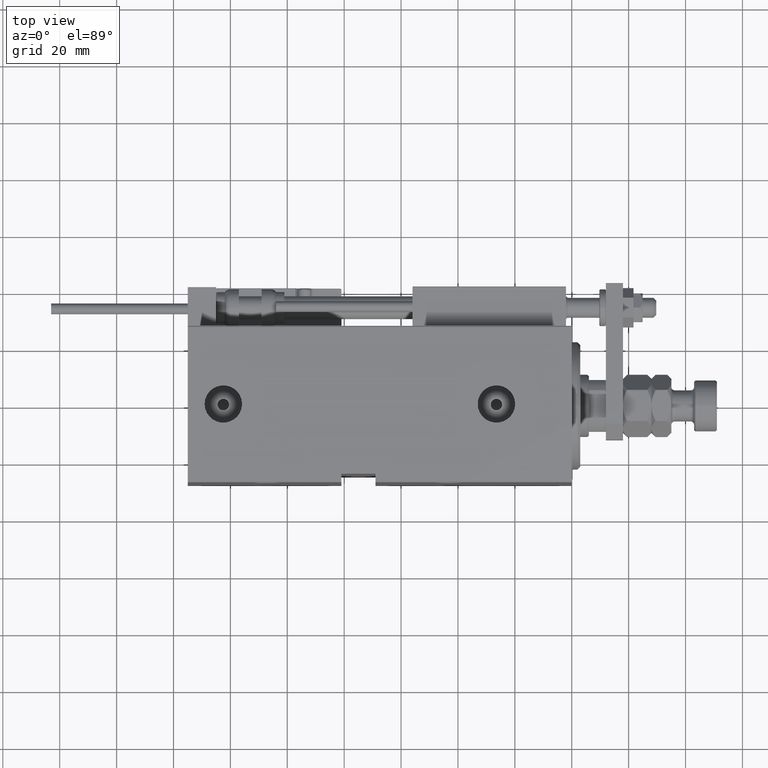
[diagram: clean part render]
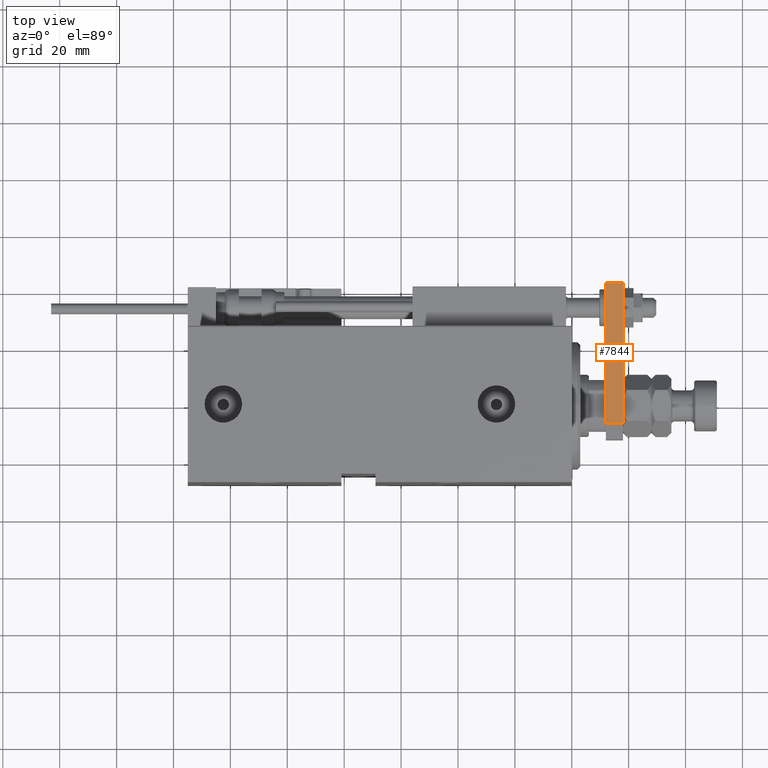
[diagram: same view with one face highlighted and labeled with its STEP entity id]
A machine part, top view. The second image highlights one B-rep face of the part: STEP entity #7844.
In plain terms, the highlighted planar face has unit normal (-0, -0, -1).
Its self-contained STEP definition (entity closure, byte-faithful):
#71 = LINE ( 'NONE', #28690, #18438 ) ;
#276 = CARTESIAN_POINT ( 'NONE',  ( -12.49999999999999822, 55.00000000000000000, 6.000000000000000000 ) ) ;
#2014 = LINE ( 'NONE', #17832, #44485 ) ;
#3755 = FACE_OUTER_BOUND ( 'NONE', #37415, .T. ) ;
#4873 = DIRECTION ( 'NONE',  ( -0.000000000000000000, -0.000000000000000000, -1.000000000000000000 ) ) ;
#5451 = VERTEX_POINT ( 'NONE', #30832 ) ;
#6125 = EDGE_CURVE ( 'NONE', #5451, #16895, #2014, .T. ) ;
#6514 = DIRECTION ( 'NONE',  ( 9.462128050782583143E-17, 1.000000000000000000, 0.000000000000000000 ) ) ;
#7622 = VERTEX_POINT ( 'NONE', #33509 ) ;
#7646 = DIRECTION ( 'NONE',  ( -9.462128050782584375E-17, -1.000000000000000000, 0.000000000000000000 ) ) ;
#7844 = ADVANCED_FACE ( 'NONE', ( #3755 ), #20088, .F. ) ;
#10229 = ORIENTED_EDGE ( 'NONE', *, *, #6125, .F. ) ;
#10384 = VERTEX_POINT ( 'NONE', #26134 ) ;
#10507 = ORIENTED_EDGE ( 'NONE', *, *, #40808, .T. ) ;
#13812 = DIRECTION ( 'NONE',  ( -9.462128050782584375E-17, -1.000000000000000000, 0.000000000000000000 ) ) ;
#15077 = DIRECTION ( 'NONE',  ( 1.000000000000000000, -9.462128050782583143E-17, 0.000000000000000000 ) ) ;
#15142 = CARTESIAN_POINT ( 'NONE',  ( -12.50000000000000355, 5.660000000000005471, 6.000000000000000000 ) ) ;
#16722 = LINE ( 'NONE', #45347, #17717 ) ;
#16895 = VERTEX_POINT ( 'NONE', #15142 ) ;
#17717 = VECTOR ( 'NONE', #49622, 1000.000000000000000 ) ;
#17832 = CARTESIAN_POINT ( 'NONE',  ( -12.49999999999999822, 55.00000000000000000, 6.000000000000000000 ) ) ;
#18438 = VECTOR ( 'NONE', #4873, 1000.000000000000000 ) ;
#20088 = PLANE ( 'NONE',  #52156 ) ;
#24365 = EDGE_CURVE ( 'NONE', #5451, #7622, #71, .T. ) ;
#24860 = EDGE_CURVE ( 'NONE', #7622, #10384, #51797, .T. ) ;
#26134 = CARTESIAN_POINT ( 'NONE',  ( -12.50000000000000355, 5.660000000000005471, 0.000000000000000000 ) ) ;
#28690 = CARTESIAN_POINT ( 'NONE',  ( -12.49999999999999822, 55.00000000000000000, 6.000000000000000000 ) ) ;
#30573 = ORIENTED_EDGE ( 'NONE', *, *, #24860, .T. ) ;
#30832 = CARTESIAN_POINT ( 'NONE',  ( -12.49999999999999822, 55.00000000000000000, 6.000000000000000000 ) ) ;
#31730 = CARTESIAN_POINT ( 'NONE',  ( -12.49999999999999822, 55.00000000000000000, 0.000000000000000000 ) ) ;
#33509 = CARTESIAN_POINT ( 'NONE',  ( -12.49999999999999822, 55.00000000000000000, 0.000000000000000000 ) ) ;
#37415 = EDGE_LOOP ( 'NONE', ( #30573, #10507, #10229, #51959 ) ) ;
#40808 = EDGE_CURVE ( 'NONE', #10384, #16895, #16722, .T. ) ;
#42395 = VECTOR ( 'NONE', #7646, 1000.000000000000000 ) ;
#44485 = VECTOR ( 'NONE', #13812, 1000.000000000000000 ) ;
#45347 = CARTESIAN_POINT ( 'NONE',  ( -12.50000000000000355, 5.660000000000005471, 6.000000000000000000 ) ) ;
#49622 = DIRECTION ( 'NONE',  ( 0.000000000000000000, 0.000000000000000000, 1.000000000000000000 ) ) ;
#51797 = LINE ( 'NONE', #31730, #42395 ) ;
#51959 = ORIENTED_EDGE ( 'NONE', *, *, #24365, .T. ) ;
#52156 = AXIS2_PLACEMENT_3D ( 'NONE', #276, #15077, #6514 ) ;